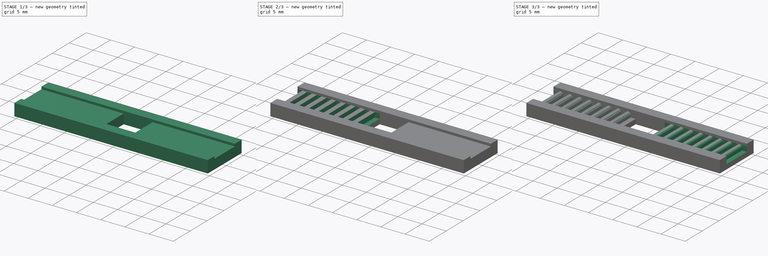
[diagram: build sequence overview — one tinted view per stage of 3, left to right]
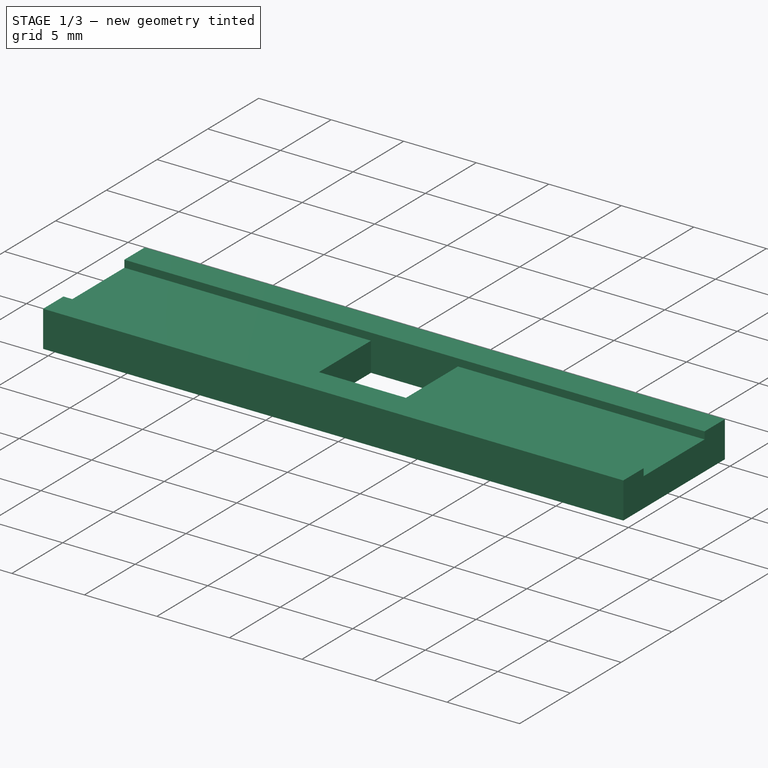
[diagram: stage 1 of 3 — iso view after this stage's code; geometry added in this stage tinted green]
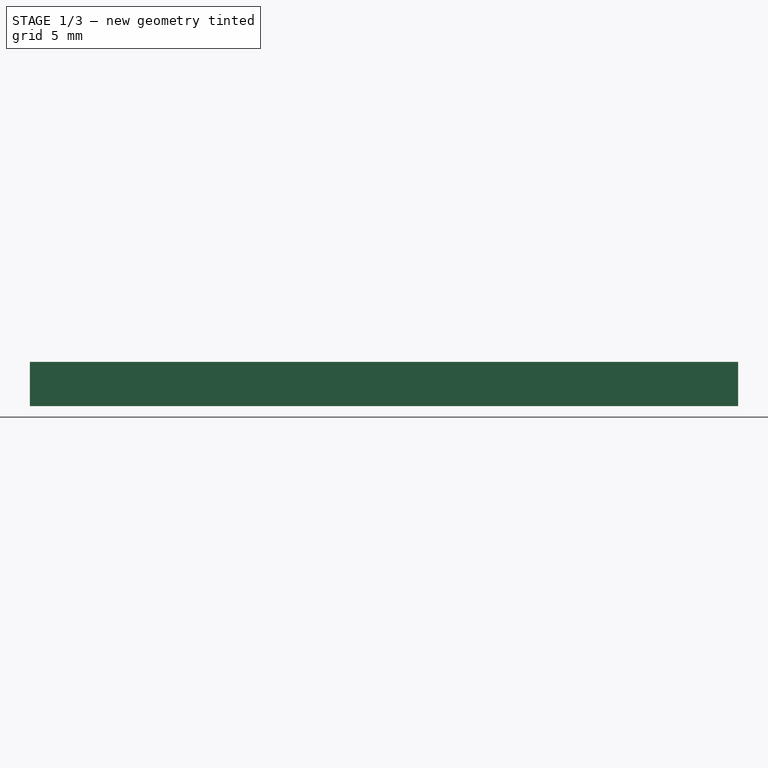
[diagram: stage 1 of 3 — front view after this stage's code; geometry added in this stage tinted green]
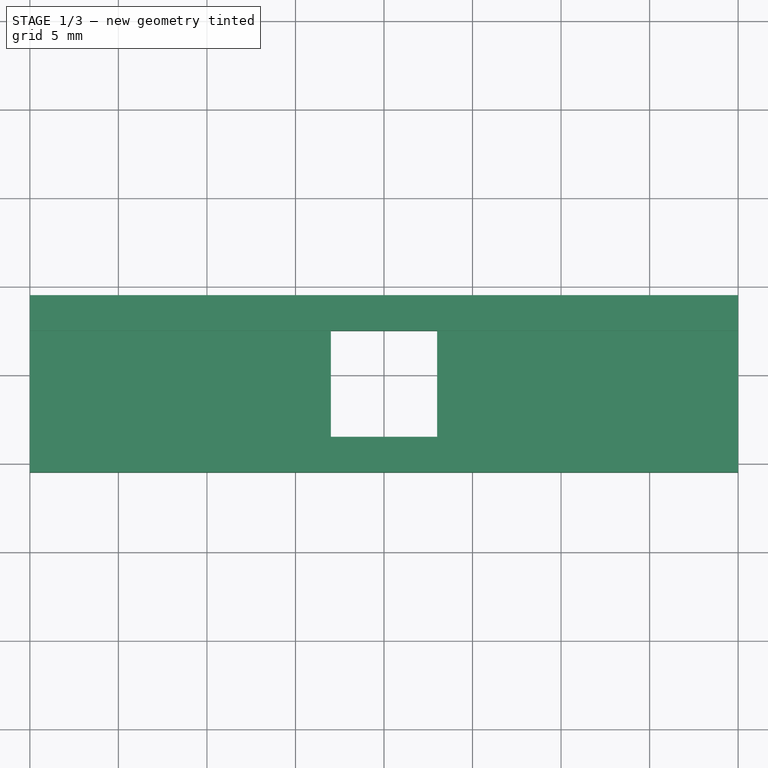
[diagram: stage 1 of 3 — top view after this stage's code; geometry added in this stage tinted green]
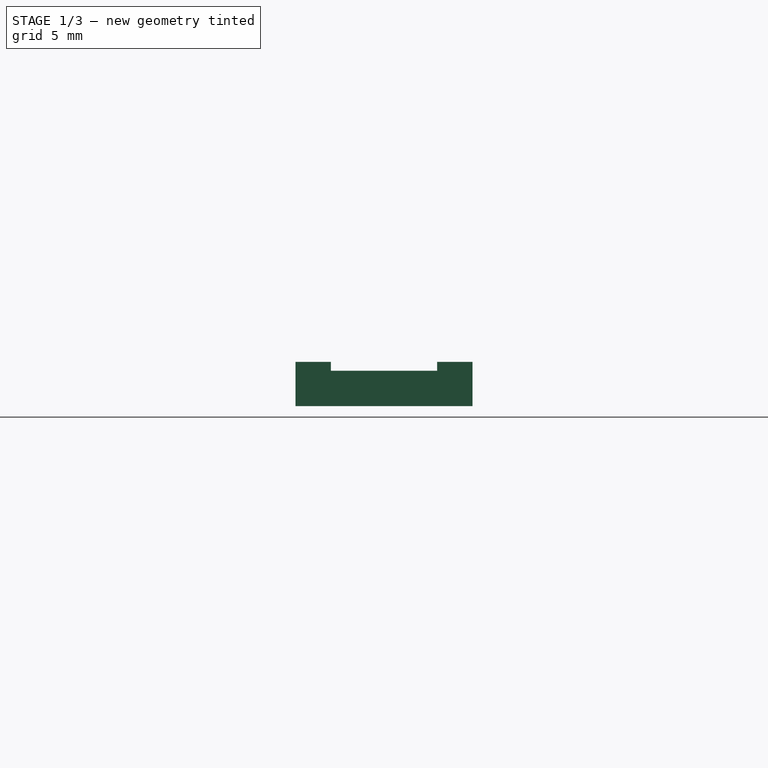
[diagram: stage 1 of 3 — right view after this stage's code; geometry added in this stage tinted green]
FCSTD DOCUMENT
Label: GT2BeltCoupler
objects: Sketcher::SketchObject×4, PartDesign::Pocket×3, PartDesign::Pad×1, PartDesign::Fillet×1
note: 10 computed .brp shape members not serialized (recipe doc carries the construction recipe); baked Part::Feature solids carry a one-line shape summary decoded from their .brp

FEATURE [Sketcher::SketchObject] Sketch
  sketch-geometry (11):
    g0: LineSegment StartX=0 StartY=-0.5 StartZ=0 EndX=40 EndY=-0.5 EndZ=0
    g1: LineSegment StartX=40 StartY=-0.5 StartZ=0 EndX=40 EndY=9.5 EndZ=0
    g2: LineSegment StartX=40 StartY=9.5 StartZ=0 EndX=0 EndY=9.5 EndZ=0
    g3: LineSegment StartX=0 StartY=9.5 StartZ=0 EndX=0 EndY=-0.5 EndZ=0
    g4: LineSegment StartX=17 StartY=7.5 StartZ=0 EndX=23 EndY=7.5 EndZ=0
    g5: LineSegment StartX=23 StartY=7.5 StartZ=0 EndX=23 EndY=1.5 EndZ=0
    g6: LineSegment StartX=20 StartY=1.5 StartZ=0 EndX=17 EndY=1.5 EndZ=0
    g7: LineSegment StartX=17 StartY=1.5 StartZ=0 EndX=17 EndY=7.5 EndZ=0
    g8: LineSegment StartX=20 StartY=1.5 StartZ=0 EndX=23 EndY=1.5 EndZ=0
    g9: LineSegment [constr] StartX=23 StartY=1.5 StartZ=0 EndX=23 EndY=-0.5 EndZ=0
    g10: LineSegment [constr] StartX=23 StartY=7.5 StartZ=0 EndX=23 EndY=9.5 EndZ=0
  constraints (33):
    c: Coincident(g0,g1)
    c: Coincident(g1,g2)
    c: Coincident(g2,g3)
    c: Coincident(g3,g0)
    c: Horizontal(g0)
    c: Horizontal(g2)
    c: Vertical(g1)
    c: Vertical(g3)
    c: DistanceY(g3) = -10
    c: DistanceX(g0) = 0
    c: DistanceY(g0) = -0.5
    c: DistanceX(g0) = 40
    c: Coincident(g4,g5)
    c: Coincident(g6,g7)
    c: Coincident(g7,g4)
    c: Horizontal(g4)
    c: Horizontal(g6)
    c: Vertical(g5)
    c: Vertical(g7)
    c: Coincident(g8,g6)
    c: Coincident(g8,g5)
    c: Horizontal(g8)
    c: Equal(g8,g6)
    c: DistanceX(g4,g4) = 6
    c: Coincident(g9,g5)
    c: PointOnObject(g9,g0)
    c: Vertical(g9)
    c: Coincident(g10,g4)
    c: PointOnObject(g10,g2)
    c: Vertical(g10)
    c: Equal(g9,g10)
    c: DistanceX(g6,g0) = -20
    c: DistanceY(g4,g5) = -6
FEATURE [PartDesign::Pad] Pad
  Length = 2.5
  MirroredExtent = false
  Sketch = -> Sketch
FEATURE [Sketcher::SketchObject] Sketch001
  Placement = pos=(0,0,2.5) rot=(0,0,1;0rad)
  Support = -> Pad [Face11]
  sketch-geometry (4):
    g0: LineSegment StartX=0 StartY=7.5 StartZ=0 EndX=40 EndY=7.5 EndZ=0
    g1: LineSegment StartX=40 StartY=7.5 StartZ=0 EndX=40 EndY=1.5 EndZ=0
    g2: LineSegment StartX=40 StartY=1.5 StartZ=0 EndX=0 EndY=1.5 EndZ=0
    g3: LineSegment StartX=0 StartY=1.5 StartZ=0 EndX=0 EndY=7.5 EndZ=0
  constraints (12):
    c: Coincident(g0,g1)
    c: Coincident(g1,g2)
    c: Coincident(g2,g3)
    c: Coincident(g3,g0)
    c: Horizontal(g0)
    c: Horizontal(g2)
    c: Vertical(g1)
    c: Vertical(g3)
    c: DistanceY(g3) = 6
    c: DistanceX(g2) = 0
    c: DistanceY(g2) = 1.5
    c: DistanceX(g2) = -40
FEATURE [PartDesign::Pocket] Pocket
  Length = 0.5
  Sketch = -> Sketch001
  Type = 0
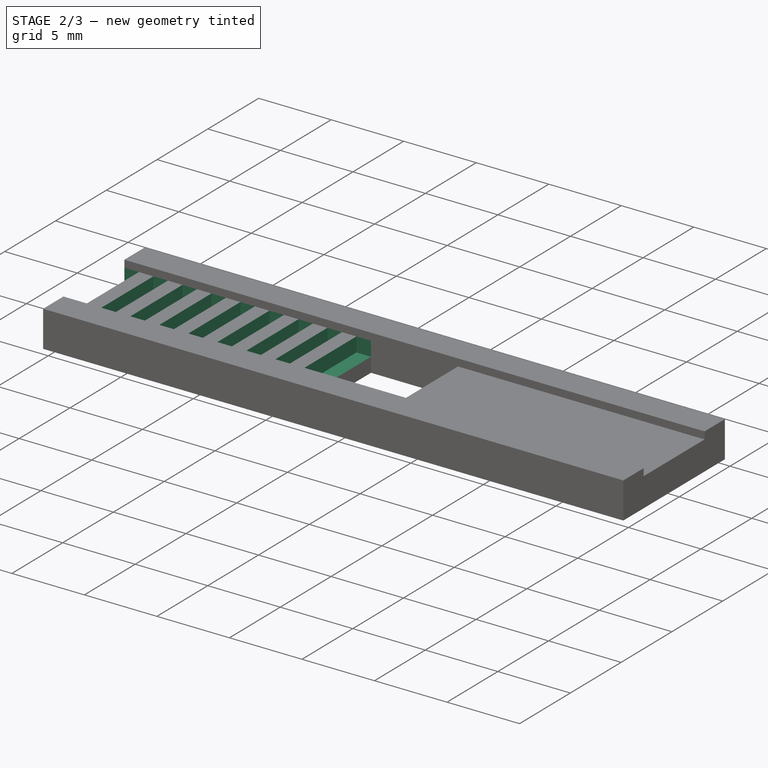
[diagram: stage 2 of 3 — iso view after this stage's code; geometry added in this stage tinted green]
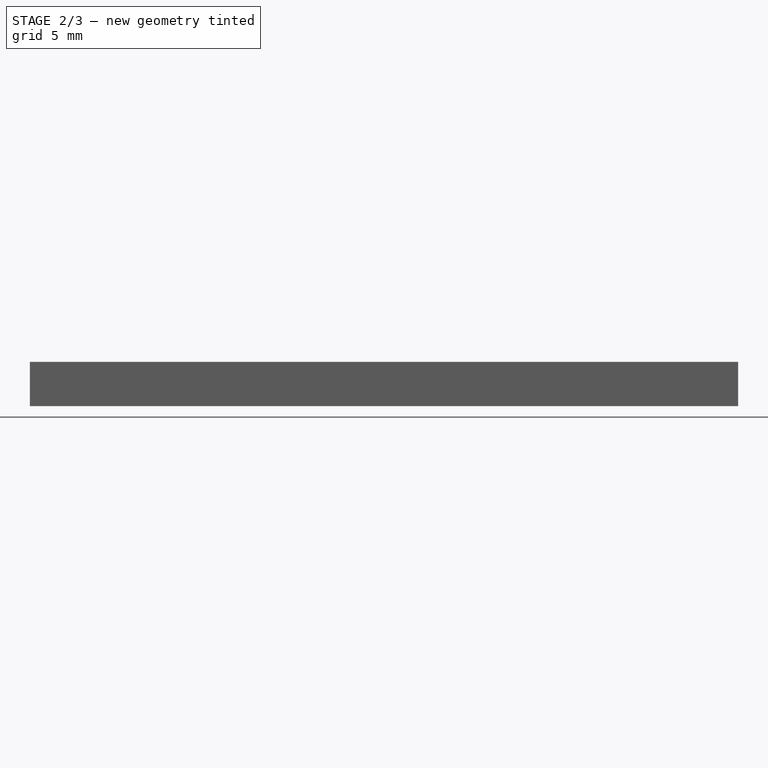
[diagram: stage 2 of 3 — front view after this stage's code; geometry added in this stage tinted green]
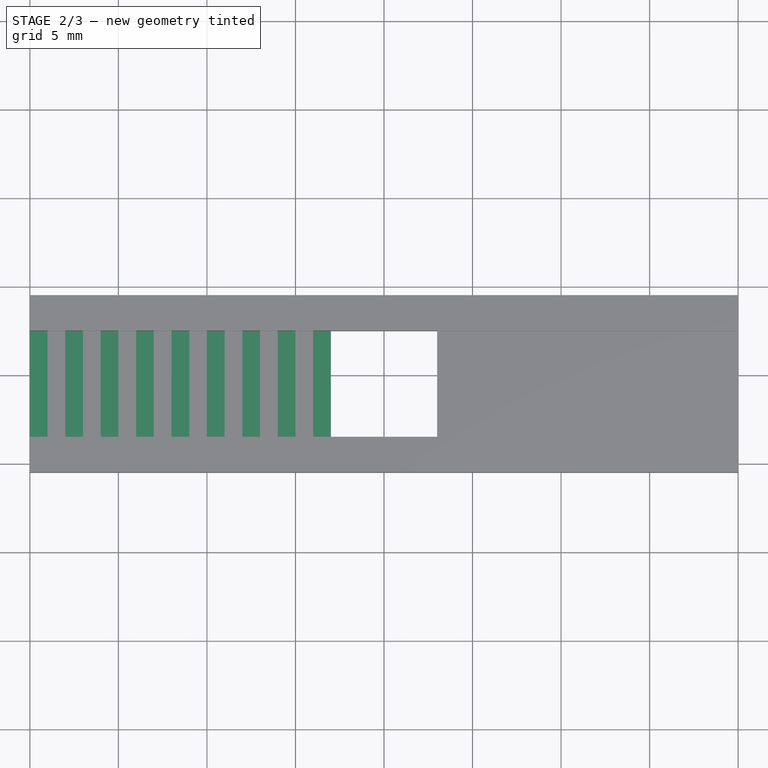
[diagram: stage 2 of 3 — top view after this stage's code; geometry added in this stage tinted green]
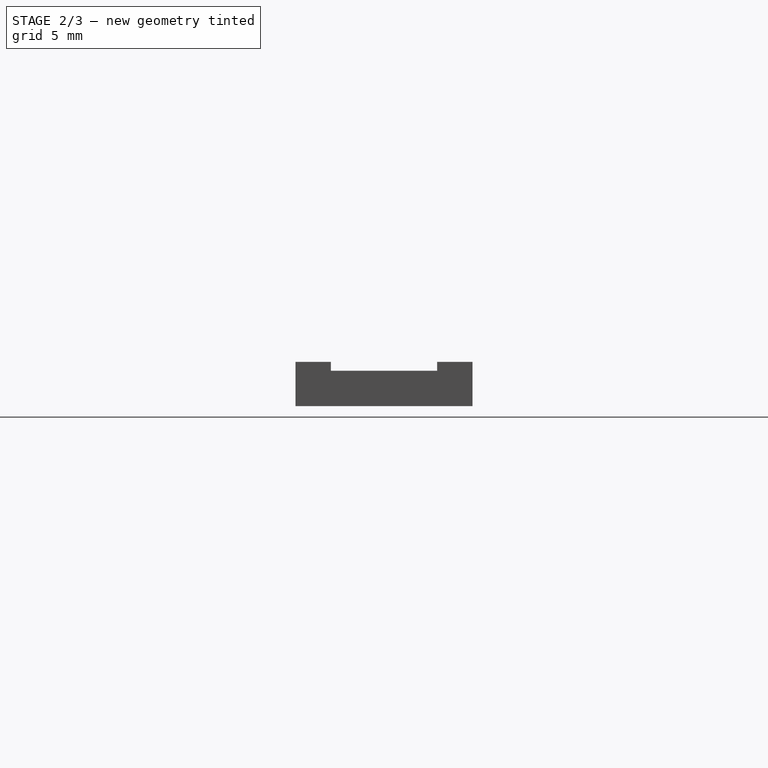
[diagram: stage 2 of 3 — right view after this stage's code; geometry added in this stage tinted green]
FEATURE [Sketcher::SketchObject] Sketch002
  Placement = pos=(0,0,2) rot=(0,0,1;0rad)
  Support = -> Pocket [Face7]
  sketch-geometry (52):
    g0: LineSegment StartX=0 StartY=7.5 StartZ=0 EndX=1 EndY=7.5 EndZ=0
    g1: LineSegment StartX=1 StartY=7.5 StartZ=0 EndX=1 EndY=1.5 EndZ=0
    g2: LineSegment StartX=1 StartY=1.5 StartZ=0 EndX=0 EndY=1.5 EndZ=0
    g3: LineSegment StartX=0 StartY=1.5 StartZ=0 EndX=0 EndY=7.5 EndZ=0
    g4: LineSegment StartX=2 StartY=7.5 StartZ=0 EndX=3 EndY=7.5 EndZ=0
    g5: LineSegment StartX=3 StartY=7.5 StartZ=0 EndX=3 EndY=1.5 EndZ=0
    g6: LineSegment StartX=3 StartY=1.5 StartZ=0 EndX=2 EndY=1.5 EndZ=0
    g7: LineSegment StartX=2 StartY=1.5 StartZ=0 EndX=2 EndY=7.5 EndZ=0
    g8: LineSegment StartX=4 StartY=7.5 StartZ=0 EndX=5 EndY=7.5 EndZ=0
    g9: LineSegment StartX=5 StartY=7.5 StartZ=0 EndX=5 EndY=1.5 EndZ=0
    g10: LineSegment StartX=5 StartY=1.5 StartZ=0 EndX=4 EndY=1.5 EndZ=0
    g11: LineSegment StartX=4 StartY=1.5 StartZ=0 EndX=4 EndY=7.5 EndZ=0
    g12: LineSegment StartX=6 StartY=7.5 StartZ=0 EndX=7 EndY=7.5 EndZ=0
    g13: LineSegment StartX=7 StartY=7.5 StartZ=0 EndX=7 EndY=1.5 EndZ=0
    g14: LineSegment StartX=7 StartY=1.5 StartZ=0 EndX=6 EndY=1.5 EndZ=0
    g15: LineSegment StartX=6 StartY=1.5 StartZ=0 EndX=6 EndY=7.5 EndZ=0
    g16: LineSegment StartX=8 StartY=7.5 StartZ=0 EndX=9 EndY=7.5 EndZ=0
    g17: LineSegment StartX=9 StartY=7.5 StartZ=0 EndX=9 EndY=1.5 EndZ=0
    g18: LineSegment StartX=9 StartY=1.5 StartZ=0 EndX=8 EndY=1.5 EndZ=0
    g19: LineSegment StartX=8 StartY=1.5 StartZ=0 EndX=8 EndY=7.5 EndZ=0
    g20: LineSegment StartX=10 StartY=7.5 StartZ=0 EndX=11 EndY=7.5 EndZ=0
    g21: LineSegment StartX=11 StartY=7.5 StartZ=0 EndX=11 EndY=1.5 EndZ=0
    g22: LineSegment StartX=11 StartY=1.5 StartZ=0 EndX=10 EndY=1.5 EndZ=0
    g23: LineSegment StartX=10 StartY=1.5 StartZ=0 EndX=10 EndY=7.5 EndZ=0
    g24: LineSegment [constr] StartX=1 StartY=1.5 StartZ=0 EndX=2 EndY=1.5 EndZ=0
    g25: LineSegment [constr] StartX=3 StartY=1.5 StartZ=0 EndX=4 EndY=1.5 EndZ=0
    g26: LineSegment [constr] StartX=5 StartY=1.5 StartZ=0 EndX=6 EndY=1.5 EndZ=0
    g27: LineSegment [constr] StartX=7 StartY=1.5 StartZ=0 EndX=8 EndY=1.5 EndZ=0
    g28: LineSegment [constr] StartX=9 StartY=1.5 StartZ=0 EndX=10 EndY=1.5 EndZ=0
    g29: LineSegment [constr] StartX=10 StartY=7.5 StartZ=0 EndX=9 EndY=7.5 EndZ=0
    g30: LineSegment [constr] StartX=8 StartY=7.5 StartZ=0 EndX=7 EndY=7.5 EndZ=0
    g31: LineSegment [constr] StartX=6 StartY=7.5 StartZ=0 EndX=5 EndY=7.5 EndZ=0
    g32: LineSegment [constr] StartX=4 StartY=7.5 StartZ=0 EndX=3 EndY=7.5 EndZ=0
    g33: LineSegment [constr] StartX=2 StartY=7.5 StartZ=0 EndX=1 EndY=7.5 EndZ=0
    g34: LineSegment StartX=12 StartY=7.5 StartZ=0 EndX=13 EndY=7.5 EndZ=0
    g35: LineSegment StartX=13 StartY=7.5 StartZ=0 EndX=13 EndY=1.5 EndZ=0
    g36: LineSegment StartX=13 StartY=1.5 StartZ=0 EndX=12 EndY=1.5 EndZ=0
    g37: LineSegment StartX=12 StartY=1.5 StartZ=0 EndX=12 EndY=7.5 EndZ=0
    g38: LineSegment StartX=14 StartY=7.5 StartZ=0 EndX=15 EndY=7.5 EndZ=0
    g39: LineSegment StartX=15 StartY=7.5 StartZ=0 EndX=15 EndY=1.5 EndZ=0
    g40: LineSegment StartX=15 StartY=1.5 StartZ=0 EndX=14 EndY=1.5 EndZ=0
    g41: LineSegment StartX=14 StartY=1.5 StartZ=0 EndX=14 EndY=7.5 EndZ=0
    g42: LineSegment [constr] StartX=11 StartY=1.5 StartZ=0 EndX=12 EndY=1.5 EndZ=0
    g43: LineSegment [constr] StartX=13 StartY=1.5 StartZ=0 EndX=14 EndY=1.5 EndZ=0
    g44: LineSegment [constr] StartX=11 StartY=7.5 StartZ=0 EndX=12 EndY=7.5 EndZ=0
    g45: LineSegment [constr] StartX=13 StartY=7.5 StartZ=0 EndX=14 EndY=7.5 EndZ=0
    g46: LineSegment StartX=16 StartY=7.5 StartZ=0 EndX=19 EndY=7.5 EndZ=0
    g47: LineSegment StartX=19 StartY=7.5 StartZ=0 EndX=19 EndY=1.5 EndZ=0
    g48: LineSegment StartX=19 StartY=1.5 StartZ=0 EndX=16 EndY=1.5 EndZ=0
    g49: LineSegment StartX=16 StartY=1.5 StartZ=0 EndX=16 EndY=7.5 EndZ=0
    g50: LineSegment [constr] StartX=15 StartY=7.5 StartZ=0 EndX=16 EndY=7.5 EndZ=0
    g51: LineSegment [constr] StartX=15 StartY=1.5 StartZ=0 EndX=16 EndY=1.5 EndZ=0
  constraints (140):
    c: Coincident(g0,g1)
    c: Coincident(g1,g2)
    c: Coincident(g2,g3)
    c: Coincident(g3,g0)
    c: Horizontal(g0)
    c: Horizontal(g2)
    c: Vertical(g1)
    c: Vertical(g3)
    c: Coincident(g4,g5)
    c: Coincident(g5,g6)
    c: Coincident(g6,g7)
    c: Coincident(g7,g4)
    c: Horizontal(g4)
    c: Horizontal(g6)
    c: Vertical(g5)
    c: Vertical(g7)
    c: Coincident(g8,g9)
    c: Coincident(g9,g10)
    c: Coincident(g10,g11)
    c: Coincident(g11,g8)
    c: Horizontal(g8)
    c: Horizontal(g10)
    c: Vertical(g9)
    c: Vertical(g11)
    c: Coincident(g12,g13)
    c: Coincident(g13,g14)
    c: Coincident(g14,g15)
    c: Coincident(g15,g12)
    c: Horizontal(g12)
    c: Horizontal(g14)
    c: Vertical(g13)
    c: Vertical(g15)
    c: Coincident(g16,g17)
    c: Coincident(g17,g18)
    c: Coincident(g18,g19)
    c: Coincident(g19,g16)
    c: Horizontal(g16)
    c: Horizontal(g18)
    c: Vertical(g17)
    c: Vertical(g19)
    c: Coincident(g20,g21)
    c: Coincident(g21,g22)
    c: Coincident(g22,g23)
    c: Coincident(g23,g20)
    c: Horizontal(g20)
    c: Horizontal(g22)
    c: Vertical(g21)
    c: Vertical(g23)
    c: Coincident(g24,g1)
    c: Coincident(g24,g6)
    c: Horizontal(g24)
    c: Coincident(g25,g5)
    c: Coincident(g25,g10)
    c: Horizontal(g25)
    c: Coincident(g26,g9)
    c: Coincident(g26,g14)
    c: Coincident(g27,g13)
    c: Coincident(g27,g18)
    c: Coincident(g28,g17)
    c: Coincident(g28,g22)
    c: Coincident(g29,g20)
    c: Coincident(g29,g16)
    c: Coincident(g30,g16)
    c: Coincident(g30,g12)
    c: Coincident(g31,g12)
    c: Coincident(g31,g8)
    c: Coincident(g32,g8)
    c: Coincident(g32,g4)
    c: Horizontal(g32)
    c: Coincident(g33,g4)
    c: Coincident(g33,g0)
    c: Horizontal(g31)
    c: Horizontal(g30)
    c: Horizontal(g29)
    c: Horizontal(g28)
    c: Horizontal(g27)
    c: Horizontal(g26)
    c: Horizontal(g33)
    c: DistanceX(g2,g6) = 2
    c: DistanceX(g24) = 1
    c: DistanceY(g0,g2) = -6
    c: Coincident(g34,g35)
    c: Coincident(g35,g36)
    c: Coincident(g36,g37)
    c: Coincident(g37,g34)
    c: Horizontal(g34)
    c: Horizontal(g36)
    c: Vertical(g35)
    c: Vertical(g37)
    c: Coincident(g38,g39)
    c: Coincident(g39,g40)
    c: Coincident(g40,g41)
    c: Coincident(g41,g38)
    c: Horizontal(g38)
    c: Horizontal(g40)
    c: Vertical(g39)
    c: Vertical(g41)
    c: Coincident(g42,g21)
    c: Coincident(g42,g36)
    c: Coincident(g43,g40)
    c: Coincident(g43,g35)
    c: Horizontal(g43)
    c: Horizontal(g42)
    c: Coincident(g44,g20)
    c: Coincident(g44,g34)
    c: Coincident(g45,g34)
    c: Coincident(g45,g38)
    c: Horizontal(g45)
    c: Horizontal(g44)
    c: Equal(g2,g6)
    c: Equal(g6,g10)
    c: Equal(g10,g14)
    c: Equal(g14,g18)
    c: Equal(g18,g22)
    c: Equal(g22,g36)
    c: Equal(g36,g40)
    c: Equal(g33,g32)
    c: Equal(g32,g31)
    c: Equal(g31,g30)
    c: Equal(g30,g29)
    c: Equal(g29,g44)
    c: Equal(g44,g45)
    c: DistanceX(g2) = 0
    c: DistanceY(g2) = 1.5
    c: Coincident(g46,g47)
    c: Coincident(g47,g48)
    c: Coincident(g48,g49)
    c: Coincident(g49,g46)
    c: Horizontal(g46)
    c: Horizontal(g48)
    c: Vertical(g47)
    c: Vertical(g49)
    c: Coincident(g50,g38)
    c: Coincident(g50,g46)
    c: Horizontal(g50)
    c: Coincident(g51,g39)
    c: Coincident(g51,g48)
    c: Horizontal(g51)
    c: Equal(g43,g51)
    c: DistanceX(g48) = -3
FEATURE [PartDesign::Pocket] Pocket001
  Length = 1
  Sketch = -> Sketch002
  Type = 0
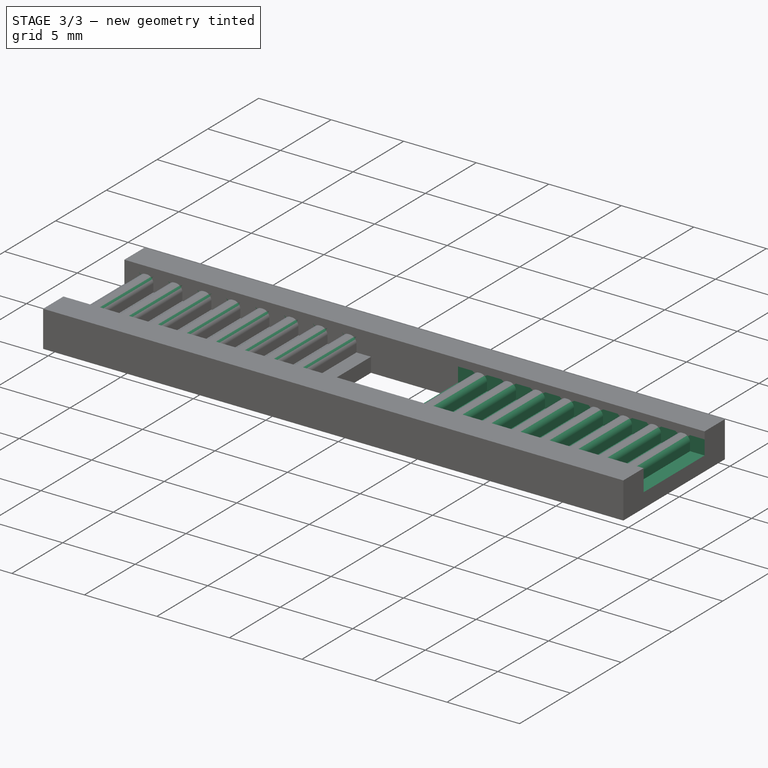
[diagram: stage 3 of 3 — iso view after this stage's code; geometry added in this stage tinted green]
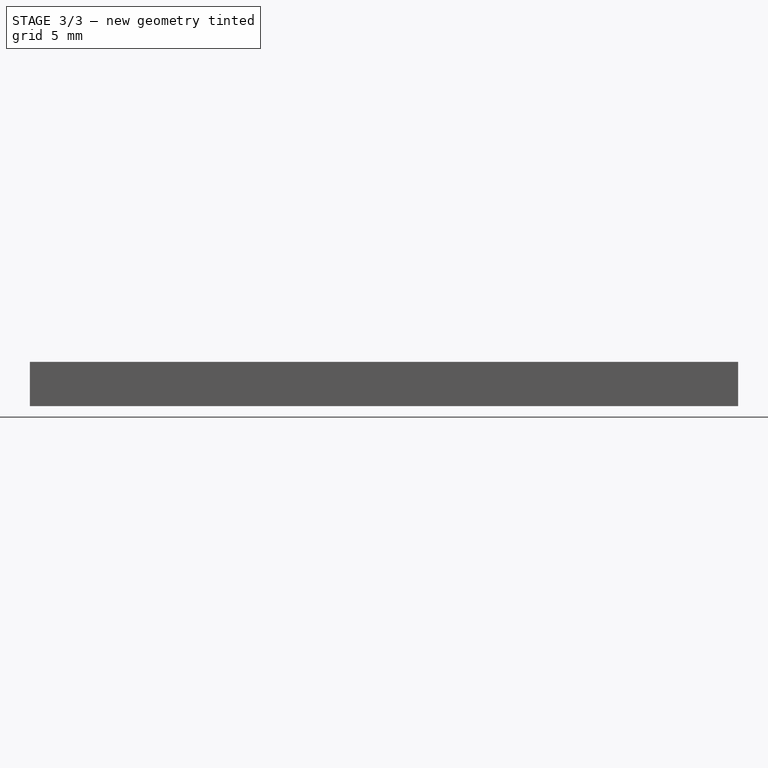
[diagram: stage 3 of 3 — front view after this stage's code; geometry added in this stage tinted green]
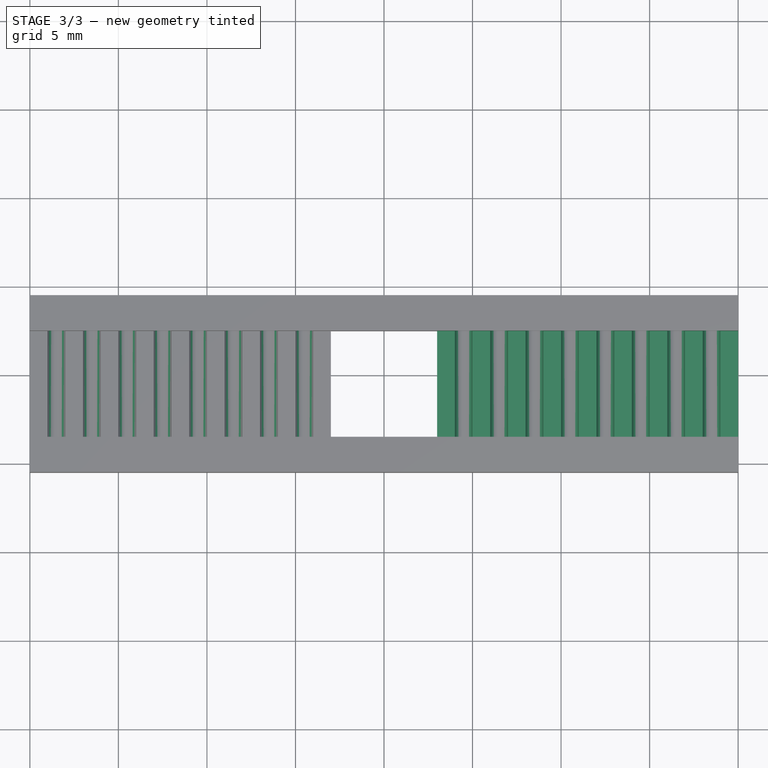
[diagram: stage 3 of 3 — top view after this stage's code; geometry added in this stage tinted green]
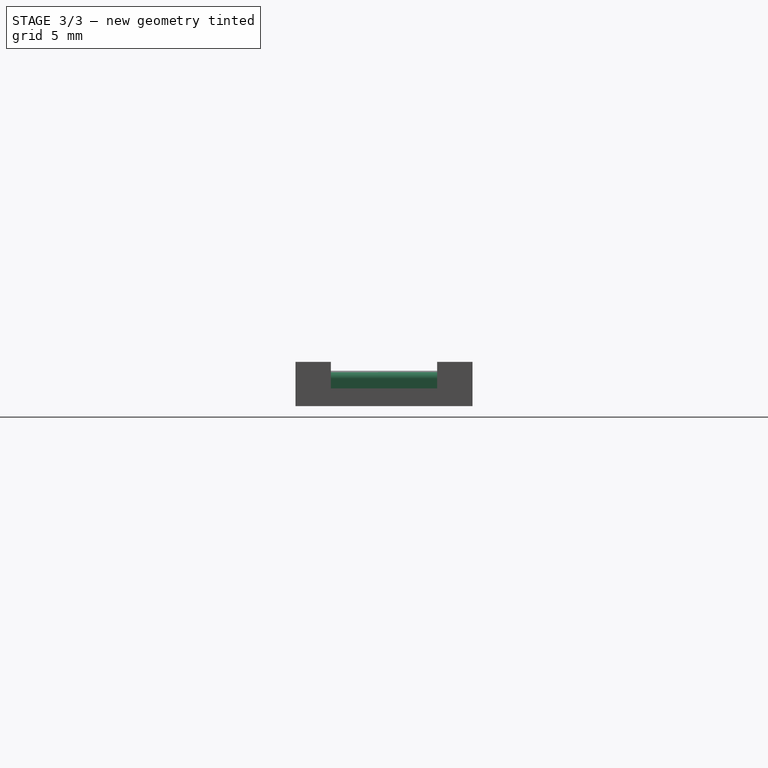
[diagram: stage 3 of 3 — right view after this stage's code; geometry added in this stage tinted green]
FEATURE [Sketcher::SketchObject] Sketch003
  Placement = pos=(0,0,2) rot=(0,0,1;0rad)
  Support = -> Pocket001 [Face7]
  sketch-geometry (52):
    g0: LineSegment StartX=21 StartY=7.5 StartZ=0 EndX=24 EndY=7.5 EndZ=0
    g1: LineSegment StartX=24 StartY=7.5 StartZ=0 EndX=24 EndY=1.5 EndZ=0
    g2: LineSegment StartX=21 StartY=1.5 StartZ=0 EndX=21 EndY=7.5 EndZ=0
    g3: LineSegment StartX=25 StartY=7.5 StartZ=0 EndX=26 EndY=7.5 EndZ=0
    g4: LineSegment StartX=26 StartY=7.5 StartZ=0 EndX=26 EndY=1.5 EndZ=0
    g5: LineSegment StartX=26 StartY=1.5 StartZ=0 EndX=25 EndY=1.5 EndZ=0
    g6: LineSegment StartX=25 StartY=1.5 StartZ=0 EndX=25 EndY=7.5 EndZ=0
    g7: LineSegment StartX=27 StartY=7.5 StartZ=0 EndX=28 EndY=7.5 EndZ=0
    g8: LineSegment StartX=28 StartY=7.5 StartZ=0 EndX=28 EndY=1.5 EndZ=0
    g9: LineSegment StartX=28 StartY=1.5 StartZ=0 EndX=27 EndY=1.5 EndZ=0
    g10: LineSegment StartX=27 StartY=1.5 StartZ=0 EndX=27 EndY=7.5 EndZ=0
    g11: LineSegment StartX=29 StartY=7.5 StartZ=0 EndX=30 EndY=7.5 EndZ=0
    g12: LineSegment StartX=30 StartY=7.5 StartZ=0 EndX=30 EndY=1.5 EndZ=0
    g13: LineSegment StartX=30 StartY=1.5 StartZ=0 EndX=29 EndY=1.5 EndZ=0
    g14: LineSegment StartX=29 StartY=1.5 StartZ=0 EndX=29 EndY=7.5 EndZ=0
    g15: LineSegment StartX=31 StartY=7.5 StartZ=0 EndX=32 EndY=7.5 EndZ=0
    g16: LineSegment StartX=32 StartY=7.5 StartZ=0 EndX=32 EndY=1.5 EndZ=0
    g17: LineSegment StartX=32 StartY=1.5 StartZ=0 EndX=31 EndY=1.5 EndZ=0
    g18: LineSegment StartX=31 StartY=1.5 StartZ=0 EndX=31 EndY=7.5 EndZ=0
    g19: LineSegment [constr] StartX=24 StartY=1.5 StartZ=0 EndX=25 EndY=1.5 EndZ=0
    g20: LineSegment [constr] StartX=26 StartY=1.5 StartZ=0 EndX=27 EndY=1.5 EndZ=0
    g21: LineSegment [constr] StartX=28 StartY=1.5 StartZ=0 EndX=29 EndY=1.5 EndZ=0
    g22: LineSegment [constr] StartX=30 StartY=1.5 StartZ=0 EndX=31 EndY=1.5 EndZ=0
    g23: LineSegment [constr] StartX=31 StartY=7.5 StartZ=0 EndX=30 EndY=7.5 EndZ=0
    g24: LineSegment [constr] StartX=29 StartY=7.5 StartZ=0 EndX=28 EndY=7.5 EndZ=0
    g25: LineSegment [constr] StartX=27 StartY=7.5 StartZ=0 EndX=26 EndY=7.5 EndZ=0
    g26: LineSegment [constr] StartX=25 StartY=7.5 StartZ=0 EndX=24 EndY=7.5 EndZ=0
    g27: LineSegment StartX=33 StartY=7.5 StartZ=0 EndX=34 EndY=7.5 EndZ=0
    g28: LineSegment StartX=34 StartY=7.5 StartZ=0 EndX=34 EndY=1.5 EndZ=0
    g29: LineSegment StartX=34 StartY=1.5 StartZ=0 EndX=33 EndY=1.5 EndZ=0
    g30: LineSegment StartX=33 StartY=1.5 StartZ=0 EndX=33 EndY=7.5 EndZ=0
    g31: LineSegment StartX=35 StartY=7.5 StartZ=0 EndX=36 EndY=7.5 EndZ=0
    g32: LineSegment StartX=36 StartY=7.5 StartZ=0 EndX=36 EndY=1.5 EndZ=0
    g33: LineSegment StartX=36 StartY=1.5 StartZ=0 EndX=35 EndY=1.5 EndZ=0
    g34: LineSegment StartX=35 StartY=1.5 StartZ=0 EndX=35 EndY=7.5 EndZ=0
    g35: LineSegment StartX=37 StartY=7.5 StartZ=0 EndX=38 EndY=7.5 EndZ=0
    g36: LineSegment StartX=38 StartY=7.5 StartZ=0 EndX=38 EndY=1.5 EndZ=0
    g37: LineSegment StartX=38 StartY=1.5 StartZ=0 EndX=37 EndY=1.5 EndZ=0
    g38: LineSegment StartX=37 StartY=1.5 StartZ=0 EndX=37 EndY=7.5 EndZ=0
    g39: LineSegment StartX=39 StartY=7.5 StartZ=0 EndX=40 EndY=7.5 EndZ=0
    g40: LineSegment StartX=40 StartY=7.5 StartZ=0 EndX=40 EndY=1.5 EndZ=0
    g41: LineSegment StartX=40 StartY=1.5 StartZ=0 EndX=39 EndY=1.5 EndZ=0
    g42: LineSegment StartX=39 StartY=1.5 StartZ=0 EndX=39 EndY=7.5 EndZ=0
    g43: LineSegment [constr] StartX=32 StartY=1.5 StartZ=0 EndX=33 EndY=1.5 EndZ=0
    g44: LineSegment [constr] StartX=34 StartY=1.5 StartZ=0 EndX=35 EndY=1.5 EndZ=0
    g45: LineSegment [constr] StartX=36 StartY=1.5 StartZ=0 EndX=37 EndY=1.5 EndZ=0
    g46: LineSegment [constr] StartX=38 StartY=1.5 StartZ=0 EndX=39 EndY=1.5 EndZ=0
    g47: LineSegment [constr] StartX=32 StartY=7.5 StartZ=0 EndX=33 EndY=7.5 EndZ=0
    g48: LineSegment [constr] StartX=34 StartY=7.5 StartZ=0 EndX=35 EndY=7.5 EndZ=0
    g49: LineSegment [constr] StartX=36 StartY=7.5 StartZ=0 EndX=37 EndY=7.5 EndZ=0
    g50: LineSegment [constr] StartX=38 StartY=7.5 StartZ=0 EndX=39 EndY=7.5 EndZ=0
    g51: LineSegment StartX=21 StartY=1.5 StartZ=0 EndX=24 EndY=1.5 EndZ=0
  constraints (140):
    c: Coincident(g0,g1)
    c: Coincident(g2,g0)
    c: Horizontal(g0)
    c: Vertical(g1)
    c: Vertical(g2)
    c: Coincident(g3,g4)
    c: Coincident(g4,g5)
    c: Coincident(g5,g6)
    c: Coincident(g6,g3)
    c: Horizontal(g3)
    c: Horizontal(g5)
    c: Vertical(g4)
    c: Vertical(g6)
    c: Coincident(g7,g8)
    c: Coincident(g8,g9)
    c: Coincident(g9,g10)
    c: Coincident(g10,g7)
    c: Horizontal(g7)
    c: Horizontal(g9)
    c: Vertical(g8)
    c: Vertical(g10)
    c: Coincident(g11,g12)
    c: Coincident(g12,g13)
    c: Coincident(g13,g14)
    c: Coincident(g14,g11)
    c: Horizontal(g11)
    c: Horizontal(g13)
    c: Vertical(g12)
    c: Vertical(g14)
    c: Coincident(g15,g16)
    c: Coincident(g16,g17)
    c: Coincident(g17,g18)
    c: Coincident(g18,g15)
    c: Horizontal(g15)
    c: Horizontal(g17)
    c: Vertical(g16)
    c: Vertical(g18)
    c: Coincident(g19,g1)
    c: Coincident(g19,g5)
    c: Horizontal(g19)
    c: Coincident(g20,g4)
    c: Coincident(g20,g9)
    c: Coincident(g21,g8)
    c: Coincident(g21,g13)
    c: Coincident(g22,g12)
    c: Coincident(g22,g17)
    c: Coincident(g23,g15)
    c: Coincident(g23,g11)
    c: Coincident(g24,g11)
    c: Coincident(g24,g7)
    c: Coincident(g25,g7)
    c: Coincident(g25,g3)
    c: Coincident(g26,g3)
    c: Coincident(g26,g0)
    c: Horizontal(g26)
    c: Horizontal(g25)
    c: Horizontal(g24)
    c: Horizontal(g23)
    c: Horizontal(g22)
    c: Horizontal(g21)
    c: Horizontal(g20)
    c: Coincident(g27,g28)
    c: Coincident(g28,g29)
    c: Coincident(g29,g30)
    c: Coincident(g30,g27)
    c: Horizontal(g27)
    c: Horizontal(g29)
    c: Vertical(g28)
    c: Vertical(g30)
    c: Coincident(g31,g32)
    c: Coincident(g32,g33)
    c: Coincident(g33,g34)
    c: Coincident(g34,g31)
    c: Horizontal(g31)
    c: Horizontal(g33)
    c: Vertical(g32)
    c: Vertical(g34)
    c: Coincident(g35,g36)
    c: Coincident(g36,g37)
    c: Coincident(g37,g38)
    c: Coincident(g38,g35)
    c: Horizontal(g35)
    c: Horizontal(g37)
    c: Vertical(g36)
    c: Vertical(g38)
    c: Coincident(g39,g40)
    c: Coincident(g40,g41)
    c: Coincident(g41,g42)
    c: Coincident(g42,g39)
    c: Horizontal(g39)
    c: Horizontal(g41)
    c: Vertical(g40)
    c: Vertical(g42)
    c: Coincident(g43,g16)
    c: Coincident(g43,g29)
    c: Coincident(g44,g33)
    c: Coincident(g44,g28)
    c: Coincident(g45,g32)
    c: Coincident(g45,g37)
    c: Coincident(g46,g36)
    c: Coincident(g46,g41)
    c: Horizontal(g44)
    c: Horizontal(g43)
    c: Horizontal(g45)
    c: Horizontal(g46)
    c: Coincident(g47,g15)
    c: Coincident(g47,g27)
    c: Coincident(g48,g27)
    c: Coincident(g48,g31)
    c: Coincident(g49,g31)
    c: Coincident(g49,g35)
    c: Coincident(g50,g35)
    c: Coincident(g50,g39)
    c: Horizontal(g50)
    c: Horizontal(g49)
    c: Horizontal(g48)
    c: Horizontal(g47)
    c: Equal(g5,g9)
    c: Equal(g9,g13)
    c: Equal(g13,g17)
    c: Equal(g17,g29)
    c: Equal(g29,g33)
    c: Equal(g33,g37)
    c: Equal(g37,g41)
    c: Equal(g26,g25)
    c: Equal(g25,g24)
    c: Equal(g24,g23)
    c: Equal(g23,g47)
    c: Equal(g47,g48)
    c: Equal(g48,g49)
    c: Equal(g49,g50)
    c: DistanceX(g40) = 40
    c: DistanceX(g19) = 1
    c: DistanceX(g5,g9) = 2
    c: Coincident(g51,g2)
    c: Coincident(g51,g1)
    c: Horizontal(g51)
    c: DistanceX(g51) = 3
    c: DistanceY(g40) = 1.5
    c: DistanceY(g39,g40) = -6
FEATURE [PartDesign::Pocket] Pocket002
  Length = 1
  Sketch = -> Sketch003
  Type = 0
FEATURE [PartDesign::Fillet] Fillet
  Base = -> Pocket002 [Edge279,Edge296,Edge305,Edge306,Edge315,Edge316,Edge325,Edge326,Edge335,Edge336,Edge345,Edge346,Edge355,Edge356,Edge361,Edge362,Edge354,Edge353,Edge344,Edge343,Edge334,Edge333,Edge324,Edge323,Edge314,Edge313,Edge304,Edge303,Edge295,Edge294,Edge290,Edge209]
  Radius = 0.45
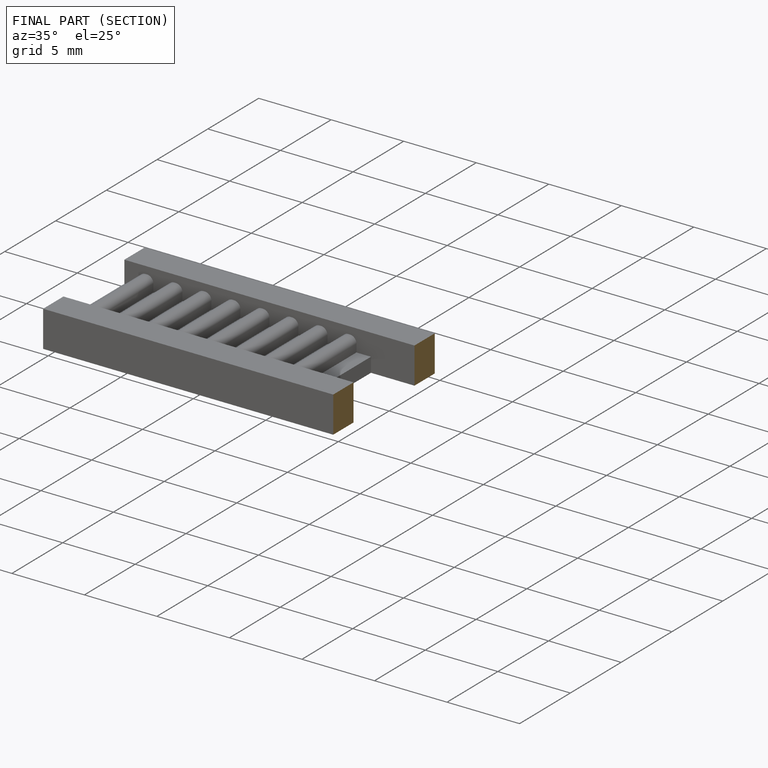
[diagram: finished part — half-section view (interior)]
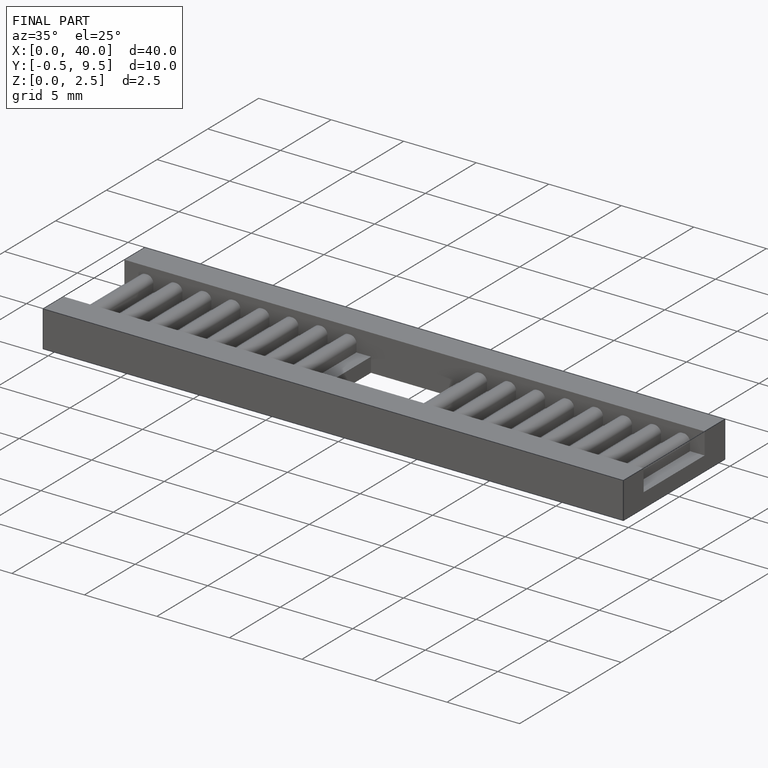
[diagram: finished part — iso view with bounding-box wireframe]
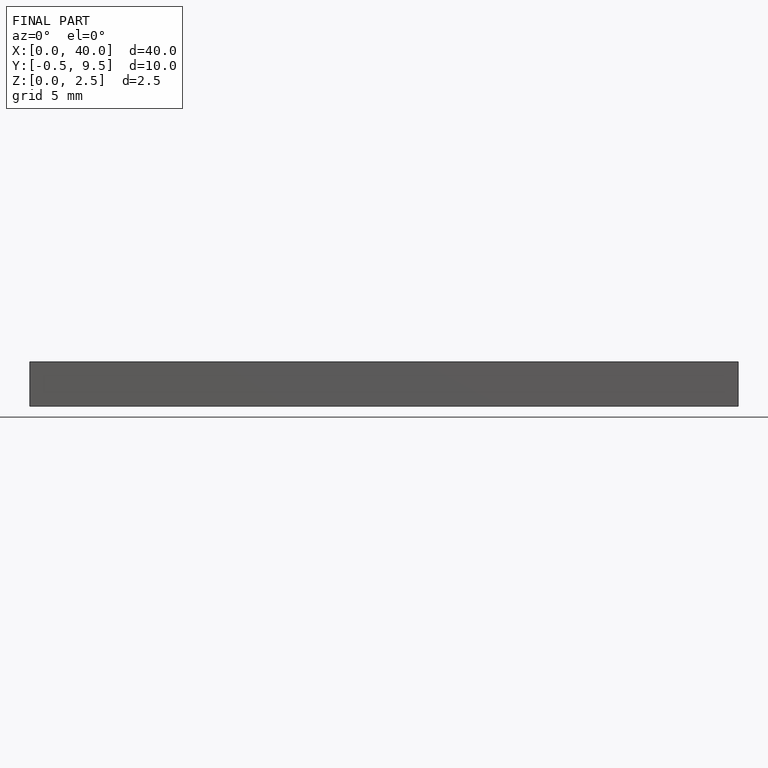
[diagram: finished part — front view with bounding-box wireframe]
